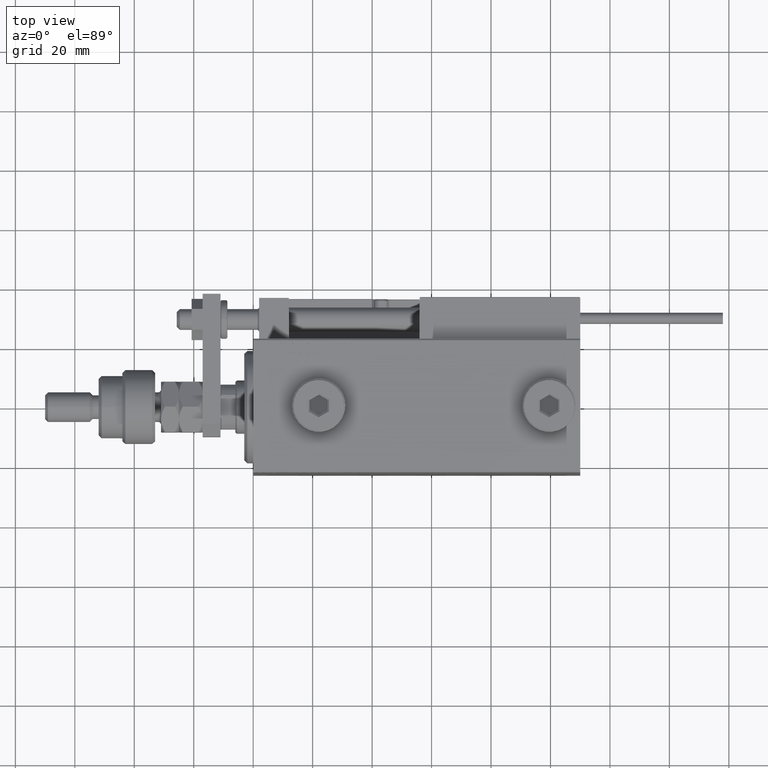
[diagram: clean part render]
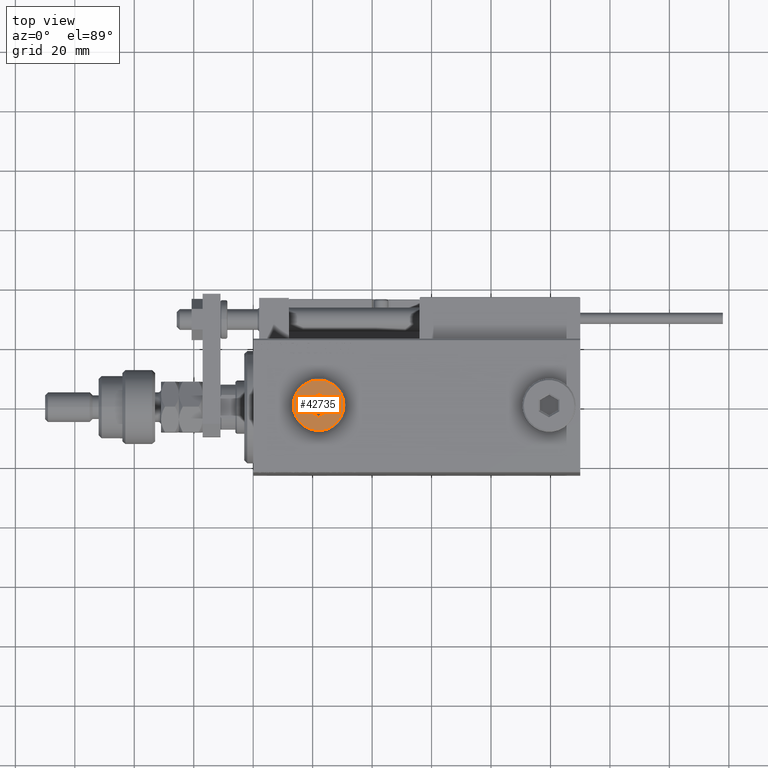
[diagram: same view with one face highlighted and labeled with its STEP entity id]
A machine part, top view. The second image highlights one B-rep face of the part: STEP entity #42735.
In plain terms, the highlighted planar face has unit normal (0, 0, 1).
Its self-contained STEP definition (entity closure, byte-faithful):
#126 = FACE_BOUND ( 'NONE', #39302, .T. ) ;
#579 = CARTESIAN_POINT ( 'NONE',  ( -1.006139216460143630E-15, -4.041451884327387667, 5.000000000000000000 ) ) ;
#1125 = ORIENTED_EDGE ( 'NONE', *, *, #5209, .T. ) ;
#1452 = EDGE_CURVE ( 'NONE', #20286, #54131, #28863, .T. ) ;
#2525 = DIRECTION ( 'NONE',  ( 1.000000000000000000, 0.000000000000000000, 0.000000000000000000 ) ) ;
#2921 = DIRECTION ( 'NONE',  ( 0.8660254037844387076, 0.4999999999999998335, 0.000000000000000000 ) ) ;
#3486 = EDGE_CURVE ( 'NONE', #32084, #31657, #38124, .T. ) ;
#3687 = CARTESIAN_POINT ( 'NONE',  ( 3.500000000000006661, 2.020725942163694722, 5.000000000000000000 ) ) ;
#3721 = CARTESIAN_POINT ( 'NONE',  ( 0.000000000000000000, 0.000000000000000000, 5.000000000000000000 ) ) ;
#5209 = EDGE_CURVE ( 'NONE', #54131, #20286, #44424, .T. ) ;
#5350 = VECTOR ( 'NONE', #51033, 1000.000000000000114 ) ;
#5628 = LINE ( 'NONE', #14947, #38469 ) ;
#5829 = AXIS2_PLACEMENT_3D ( 'NONE', #12900, #25556, #33249 ) ;
#6868 = CARTESIAN_POINT ( 'NONE',  ( 1.590596867181068292E-15, 4.041451884327386779, 5.000000000000000000 ) ) ;
#7055 = CARTESIAN_POINT ( 'NONE',  ( -0.2500000000000027756, 3.897114317029978459, 5.000000000000000000 ) ) ;
#8648 = FACE_OUTER_BOUND ( 'NONE', #16208, .T. ) ;
#9723 = VERTEX_POINT ( 'NONE', #6868 ) ;
#11883 = ORIENTED_EDGE ( 'NONE', *, *, #13204, .T. ) ;
#12355 = LINE ( 'NONE', #45881, #47773 ) ;
#12402 = ORIENTED_EDGE ( 'NONE', *, *, #48896, .T. ) ;
#12900 = CARTESIAN_POINT ( 'NONE',  ( 0.000000000000000000, 0.000000000000000000, 5.000000000000000000 ) ) ;
#13204 = EDGE_CURVE ( 'NONE', #46137, #9723, #53210, .T. ) ;
#13716 = CARTESIAN_POINT ( 'NONE',  ( 3.500000000000006661, -2.020725942163693833, 5.000000000000000000 ) ) ;
#13945 = CARTESIAN_POINT ( 'NONE',  ( 0.2500000000000027756, -3.897114317029979347, 5.000000000000000000 ) ) ;
#14493 = LINE ( 'NONE', #35914, #23456 ) ;
#14947 = CARTESIAN_POINT ( 'NONE',  ( -3.500000000000006661, 1.732050807568878081, 5.000000000000000000 ) ) ;
#15034 = DIRECTION ( 'NONE',  ( 0.8660254037844387076, -0.4999999999999998890, 0.000000000000000000 ) ) ;
#15442 = CARTESIAN_POINT ( 'NONE',  ( 0.000000000000000000, 0.000000000000000000, 5.000000000000000000 ) ) ;
#16208 = EDGE_LOOP ( 'NONE', ( #43902, #1125 ) ) ;
#16628 = DIRECTION ( 'NONE',  ( 0.000000000000000000, 0.000000000000000000, 1.000000000000000000 ) ) ;
#17551 = VECTOR ( 'NONE', #2921, 1000.000000000000000 ) ;
#17559 = DIRECTION ( 'NONE',  ( 0.000000000000000000, -1.000000000000000000, 0.000000000000000000 ) ) ;
#20218 = PLANE ( 'NONE',  #38322 ) ;
#20286 = VERTEX_POINT ( 'NONE', #33613 ) ;
#21867 = AXIS2_PLACEMENT_3D ( 'NONE', #15442, #28086, #2525 ) ;
#23456 = VECTOR ( 'NONE', #15034, 1000.000000000000000 ) ;
#25426 = DIRECTION ( 'NONE',  ( 1.000000000000000000, 0.000000000000000000, -0.000000000000000000 ) ) ;
#25556 = DIRECTION ( 'NONE',  ( 0.000000000000000000, 0.000000000000000000, 1.000000000000000000 ) ) ;
#26329 = LINE ( 'NONE', #13945, #41173 ) ;
#26596 = DIRECTION ( 'NONE',  ( -0.8660254037844387076, -0.4999999999999998890, 0.000000000000000000 ) ) ;
#28086 = DIRECTION ( 'NONE',  ( 0.000000000000000000, 0.000000000000000000, 1.000000000000000000 ) ) ;
#28863 = CIRCLE ( 'NONE', #21867, 8.500000000000010658 ) ;
#30294 = CARTESIAN_POINT ( 'NONE',  ( 8.500000000000010658, 1.071565949253934716E-15, 5.000000000000000000 ) ) ;
#30886 = DIRECTION ( 'NONE',  ( 0.000000000000000000, 1.000000000000000000, 0.000000000000000000 ) ) ;
#31657 = VERTEX_POINT ( 'NONE', #37540 ) ;
#32084 = VERTEX_POINT ( 'NONE', #579 ) ;
#32198 = ORIENTED_EDGE ( 'NONE', *, *, #3486, .T. ) ;
#33249 = DIRECTION ( 'NONE',  ( 1.000000000000000000, 0.000000000000000000, 0.000000000000000000 ) ) ;
#33613 = CARTESIAN_POINT ( 'NONE',  ( -8.500000000000010658, 0.000000000000000000, 5.000000000000000000 ) ) ;
#34001 = CARTESIAN_POINT ( 'NONE',  ( -3.250000000000003109, -2.165063509461102598, 5.000000000000000000 ) ) ;
#35778 = ORIENTED_EDGE ( 'NONE', *, *, #38550, .T. ) ;
#35914 = CARTESIAN_POINT ( 'NONE',  ( 3.250000000000003109, 2.165063509461103042, 5.000000000000000000 ) ) ;
#37540 = CARTESIAN_POINT ( 'NONE',  ( -3.500000000000006661, -2.020725942163694278, 5.000000000000000000 ) ) ;
#38124 = LINE ( 'NONE', #34001, #5350 ) ;
#38322 = AXIS2_PLACEMENT_3D ( 'NONE', #3721, #16628, #25426 ) ;
#38469 = VECTOR ( 'NONE', #30886, 1000.000000000000000 ) ;
#38550 = EDGE_CURVE ( 'NONE', #44690, #52361, #12355, .T. ) ;
#39302 = EDGE_LOOP ( 'NONE', ( #46527, #11883, #41898, #35778, #12402, #32198 ) ) ;
#41173 = VECTOR ( 'NONE', #26596, 1000.000000000000000 ) ;
#41898 = ORIENTED_EDGE ( 'NONE', *, *, #45055, .T. ) ;
#42735 = ADVANCED_FACE ( 'NONE', ( #126, #8648 ), #20218, .T. ) ;
#43902 = ORIENTED_EDGE ( 'NONE', *, *, #1452, .T. ) ;
#44424 = CIRCLE ( 'NONE', #5829, 8.500000000000010658 ) ;
#44690 = VERTEX_POINT ( 'NONE', #3687 ) ;
#45055 = EDGE_CURVE ( 'NONE', #9723, #44690, #14493, .T. ) ;
#45881 = CARTESIAN_POINT ( 'NONE',  ( 3.500000000000006661, -1.732050807568878303, 5.000000000000000000 ) ) ;
#46137 = VERTEX_POINT ( 'NONE', #51983 ) ;
#46527 = ORIENTED_EDGE ( 'NONE', *, *, #46854, .T. ) ;
#46854 = EDGE_CURVE ( 'NONE', #31657, #46137, #5628, .T. ) ;
#47773 = VECTOR ( 'NONE', #17559, 1000.000000000000000 ) ;
#48896 = EDGE_CURVE ( 'NONE', #52361, #32084, #26329, .T. ) ;
#51033 = DIRECTION ( 'NONE',  ( -0.8660254037844385966, 0.4999999999999999445, 0.000000000000000000 ) ) ;
#51983 = CARTESIAN_POINT ( 'NONE',  ( -3.500000000000006661, 2.020725942163692945, 5.000000000000000000 ) ) ;
#52361 = VERTEX_POINT ( 'NONE', #13716 ) ;
#53210 = LINE ( 'NONE', #7055, #17551 ) ;
#54131 = VERTEX_POINT ( 'NONE', #30294 ) ;